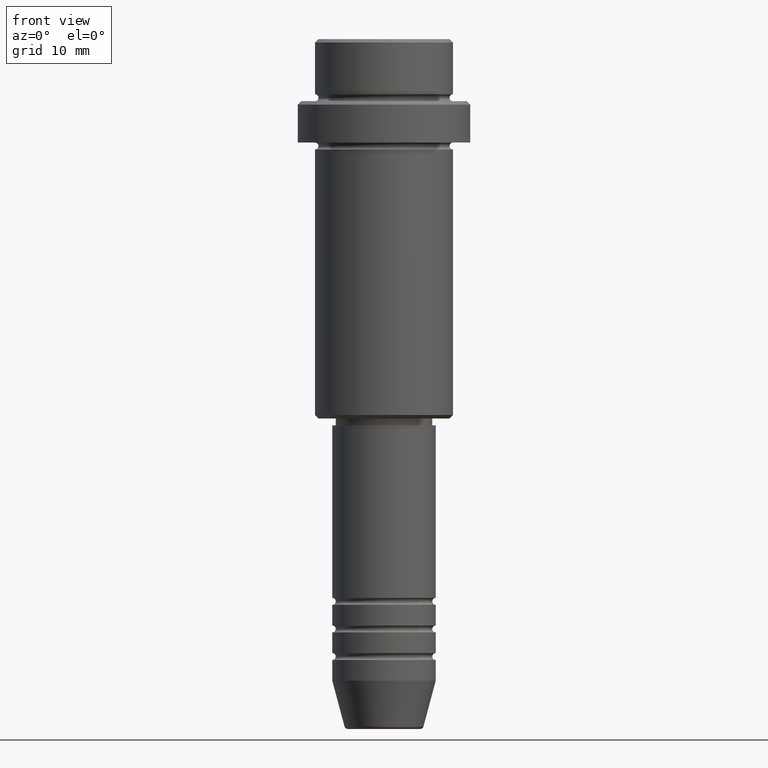
[diagram: clean part render]
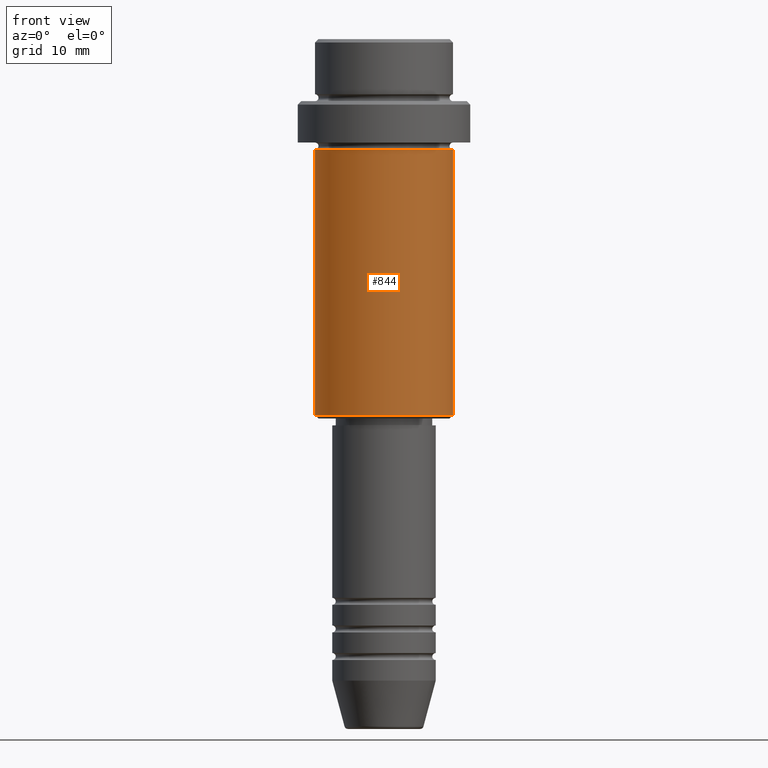
[diagram: same view with one face highlighted and labeled with its STEP entity id]
A machine part, front view. The second image highlights one B-rep face of the part: STEP entity #844.
In plain terms, the highlighted cylindrical surface (partial cylindrical patch) has radius 10 mm, axis along (-0, -0, 1).
Its self-contained STEP definition (entity closure, byte-faithful):
#18 = DIRECTION ( 'NONE',  ( -0.000000000000000000, -0.000000000000000000, 1.000000000000000000 ) ) ;
#56 = DIRECTION ( 'NONE',  ( -1.000000000000000000, 0.000000000000000000, 0.000000000000000000 ) ) ;
#96 = EDGE_LOOP ( 'NONE', ( #368, #1198, #582, #1409 ) ) ;
#138 = FACE_OUTER_BOUND ( 'NONE', #96, .T. ) ;
#162 = VERTEX_POINT ( 'NONE', #647 ) ;
#182 = EDGE_CURVE ( 'NONE', #820, #853, #506, .T. ) ;
#234 = DIRECTION ( 'NONE',  ( -0.000000000000000000, -0.000000000000000000, 1.000000000000000000 ) ) ;
#317 = CIRCLE ( 'NONE', #508, 9.999999999999998224 ) ;
#327 = LINE ( 'NONE', #1384, #411 ) ;
#342 = AXIS2_PLACEMENT_3D ( 'NONE', #1382, #843, #56 ) ;
#368 = ORIENTED_EDGE ( 'NONE', *, *, #700, .F. ) ;
#411 = VECTOR ( 'NONE', #880, 1000.000000000000000 ) ;
#489 = VECTOR ( 'NONE', #906, 1000.000000000000000 ) ;
#506 = CIRCLE ( 'NONE', #342, 9.999999999999998224 ) ;
#508 = AXIS2_PLACEMENT_3D ( 'NONE', #1118, #18, #1337 ) ;
#574 = EDGE_CURVE ( 'NONE', #1331, #162, #317, .T. ) ;
#577 = DIRECTION ( 'NONE',  ( 1.000000000000000000, 0.000000000000000000, 0.000000000000000000 ) ) ;
#582 = ORIENTED_EDGE ( 'NONE', *, *, #1311, .T. ) ;
#647 = CARTESIAN_POINT ( 'NONE',  ( 9.999999999999998224, 0.000000000000000000, -16.00000000000000000 ) ) ;
#687 = CYLINDRICAL_SURFACE ( 'NONE', #1131, 9.999999999999998224 ) ;
#700 = EDGE_CURVE ( 'NONE', #820, #1331, #327, .T. ) ;
#820 = VERTEX_POINT ( 'NONE', #1209 ) ;
#843 = DIRECTION ( 'NONE',  ( -0.000000000000000000, -0.000000000000000000, 1.000000000000000000 ) ) ;
#844 = ADVANCED_FACE ( 'NONE', ( #138 ), #687, .T. ) ;
#853 = VERTEX_POINT ( 'NONE', #998 ) ;
#878 = LINE ( 'NONE', #1223, #489 ) ;
#880 = DIRECTION ( 'NONE',  ( -0.000000000000000000, -0.000000000000000000, 1.000000000000000000 ) ) ;
#906 = DIRECTION ( 'NONE',  ( -0.000000000000000000, -0.000000000000000000, 1.000000000000000000 ) ) ;
#998 = CARTESIAN_POINT ( 'NONE',  ( 9.999999999999998224, 0.000000000000000000, -54.50000000000000711 ) ) ;
#1007 = CARTESIAN_POINT ( 'NONE',  ( -9.999999999999998224, 1.224646799147353059E-15, -16.00000000000000000 ) ) ;
#1118 = CARTESIAN_POINT ( 'NONE',  ( 0.000000000000000000, 0.000000000000000000, -16.00000000000000000 ) ) ;
#1131 = AXIS2_PLACEMENT_3D ( 'NONE', #1214, #234, #577 ) ;
#1198 = ORIENTED_EDGE ( 'NONE', *, *, #182, .T. ) ;
#1209 = CARTESIAN_POINT ( 'NONE',  ( -9.999999999999998224, 1.224646799147353059E-15, -54.50000000000000711 ) ) ;
#1214 = CARTESIAN_POINT ( 'NONE',  ( 0.000000000000000000, 0.000000000000000000, 0.000000000000000000 ) ) ;
#1223 = CARTESIAN_POINT ( 'NONE',  ( 9.999999999999998224, 0.000000000000000000, 0.000000000000000000 ) ) ;
#1311 = EDGE_CURVE ( 'NONE', #853, #162, #878, .T. ) ;
#1331 = VERTEX_POINT ( 'NONE', #1007 ) ;
#1337 = DIRECTION ( 'NONE',  ( 1.000000000000000000, 0.000000000000000000, 0.000000000000000000 ) ) ;
#1382 = CARTESIAN_POINT ( 'NONE',  ( 0.000000000000000000, 0.000000000000000000, -54.50000000000000711 ) ) ;
#1384 = CARTESIAN_POINT ( 'NONE',  ( -9.999999999999998224, 1.224646799147353059E-15, 0.000000000000000000 ) ) ;
#1409 = ORIENTED_EDGE ( 'NONE', *, *, #574, .F. ) ;